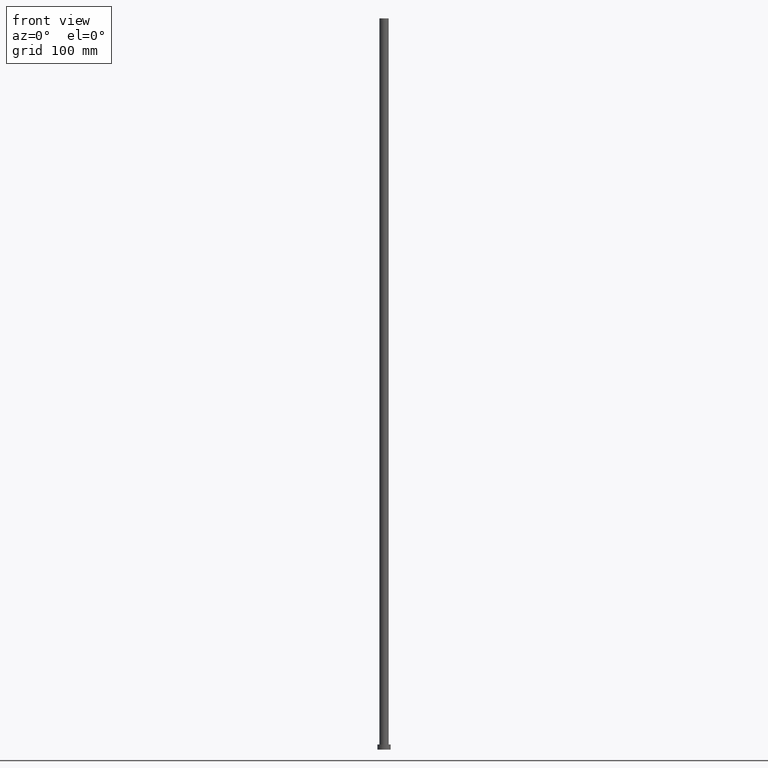
[diagram: clean part render]
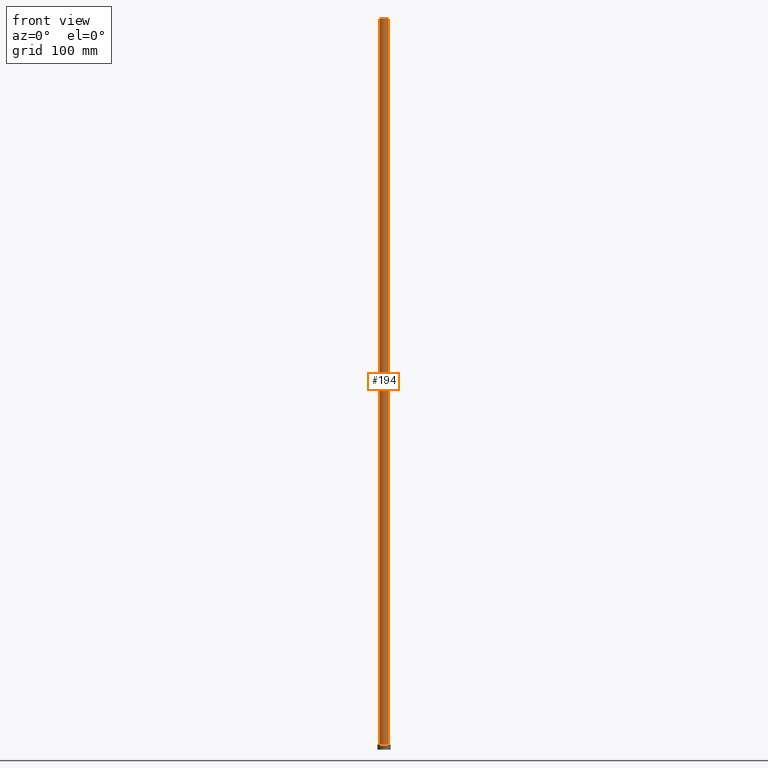
[diagram: same view with one face highlighted and labeled with its STEP entity id]
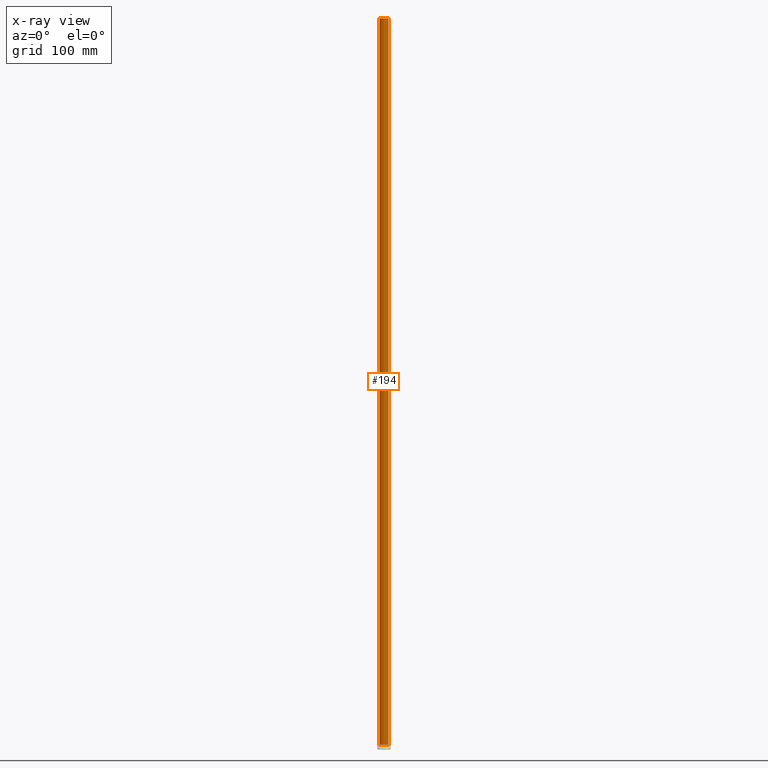
[diagram: x-ray of the same camera — body ghosted, the highlighted face saturated]
A machine part, front view. The second image highlights one B-rep face of the part: STEP entity #194.
The next image is the same camera in x-ray: the body ghosted, the highlighted face saturated — about 0% of this face is hidden behind the body in this view.
In plain terms, the highlighted cylindrical surface (edge-blend (fillet) strip) has radius 6.25 mm, axis along (-0, -0, -1).
Its self-contained STEP definition (entity closure, byte-faithful):
#1 = CARTESIAN_POINT ( 'NONE',  ( 0.000000000000000000, 0.000000000000000000, 1000.000000000000000 ) ) ;
#18 = LINE ( 'NONE', #21, #181 ) ;
#21 = CARTESIAN_POINT ( 'NONE',  ( -6.250000000000000000, 0.000000000000000000, 1000.000000000000000 ) ) ;
#32 = EDGE_CURVE ( 'NONE', #248, #186, #208, .T. ) ;
#36 = VECTOR ( 'NONE', #38, 1000.000000000000000 ) ;
#38 = DIRECTION ( 'NONE',  ( -0.000000000000000000, -0.000000000000000000, -1.000000000000000000 ) ) ;
#44 = EDGE_CURVE ( 'NONE', #126, #248, #132, .T. ) ;
#55 = CARTESIAN_POINT ( 'NONE',  ( 6.250000000000000000, 7.654042494670957606E-16, 1000.000000000000000 ) ) ;
#58 = AXIS2_PLACEMENT_3D ( 'NONE', #1, #236, #93 ) ;
#75 = CYLINDRICAL_SURFACE ( 'NONE', #94, 6.250000000000000000 ) ;
#91 = DIRECTION ( 'NONE',  ( 1.000000000000000000, 0.000000000000000000, 0.000000000000000000 ) ) ;
#93 = DIRECTION ( 'NONE',  ( 1.000000000000000000, 0.000000000000000000, 0.000000000000000000 ) ) ;
#94 = AXIS2_PLACEMENT_3D ( 'NONE', #150, #130, #211 ) ;
#99 = CARTESIAN_POINT ( 'NONE',  ( 6.250000000000000000, 7.654042494670957606E-16, 1000.000000000000000 ) ) ;
#102 = CIRCLE ( 'NONE', #184, 6.250000000000000000 ) ;
#117 = DIRECTION ( 'NONE',  ( 0.000000000000000000, 0.000000000000000000, 1.000000000000000000 ) ) ;
#126 = VERTEX_POINT ( 'NONE', #190 ) ;
#130 = DIRECTION ( 'NONE',  ( -0.000000000000000000, -0.000000000000000000, -1.000000000000000000 ) ) ;
#132 = CIRCLE ( 'NONE', #58, 6.250000000000000000 ) ;
#145 = EDGE_LOOP ( 'NONE', ( #163, #245, #206, #187 ) ) ;
#150 = CARTESIAN_POINT ( 'NONE',  ( 0.000000000000000000, 0.000000000000000000, 1000.000000000000000 ) ) ;
#151 = EDGE_CURVE ( 'NONE', #126, #250, #18, .T. ) ;
#159 = EDGE_CURVE ( 'NONE', #250, #186, #102, .T. ) ;
#163 = ORIENTED_EDGE ( 'NONE', *, *, #32, .F. ) ;
#167 = DIRECTION ( 'NONE',  ( -0.000000000000000000, -0.000000000000000000, -1.000000000000000000 ) ) ;
#181 = VECTOR ( 'NONE', #167, 1000.000000000000000 ) ;
#184 = AXIS2_PLACEMENT_3D ( 'NONE', #235, #117, #91 ) ;
#186 = VERTEX_POINT ( 'NONE', #232 ) ;
#187 = ORIENTED_EDGE ( 'NONE', *, *, #159, .T. ) ;
#190 = CARTESIAN_POINT ( 'NONE',  ( -6.250000000000000000, 0.000000000000000000, 1000.000000000000000 ) ) ;
#194 = ADVANCED_FACE ( 'NONE', ( #253 ), #75, .T. ) ;
#200 = CARTESIAN_POINT ( 'NONE',  ( -6.250000000000000000, 0.000000000000000000, 7.000000000000000000 ) ) ;
#206 = ORIENTED_EDGE ( 'NONE', *, *, #151, .T. ) ;
#208 = LINE ( 'NONE', #55, #36 ) ;
#211 = DIRECTION ( 'NONE',  ( -1.000000000000000000, 0.000000000000000000, 0.000000000000000000 ) ) ;
#232 = CARTESIAN_POINT ( 'NONE',  ( 6.250000000000000000, 7.654042494670957606E-16, 7.000000000000000000 ) ) ;
#235 = CARTESIAN_POINT ( 'NONE',  ( 0.000000000000000000, 0.000000000000000000, 7.000000000000000000 ) ) ;
#236 = DIRECTION ( 'NONE',  ( 0.000000000000000000, 0.000000000000000000, 1.000000000000000000 ) ) ;
#245 = ORIENTED_EDGE ( 'NONE', *, *, #44, .F. ) ;
#248 = VERTEX_POINT ( 'NONE', #99 ) ;
#250 = VERTEX_POINT ( 'NONE', #200 ) ;
#253 = FACE_OUTER_BOUND ( 'NONE', #145, .T. ) ;